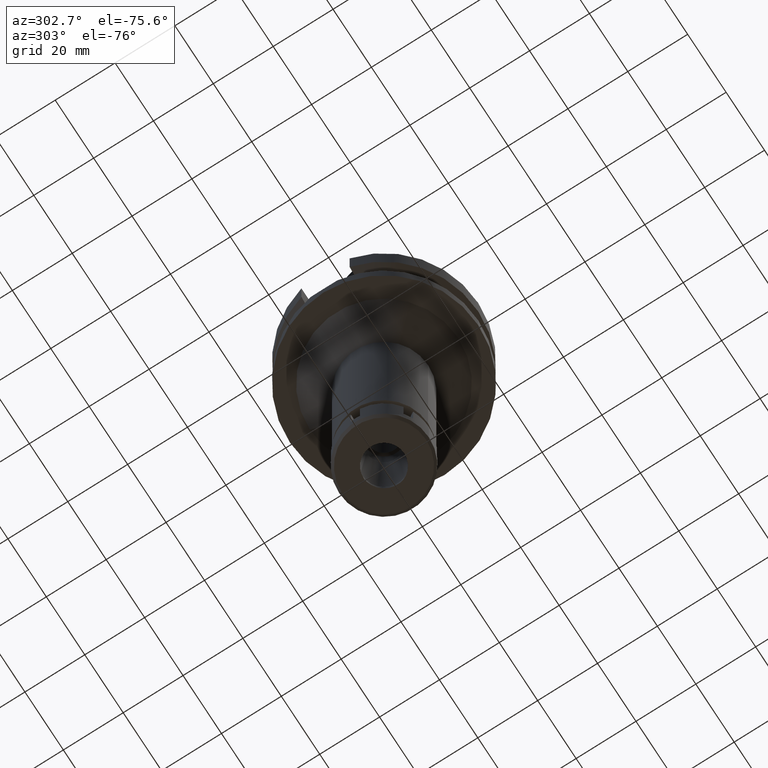
[diagram: clean part render]
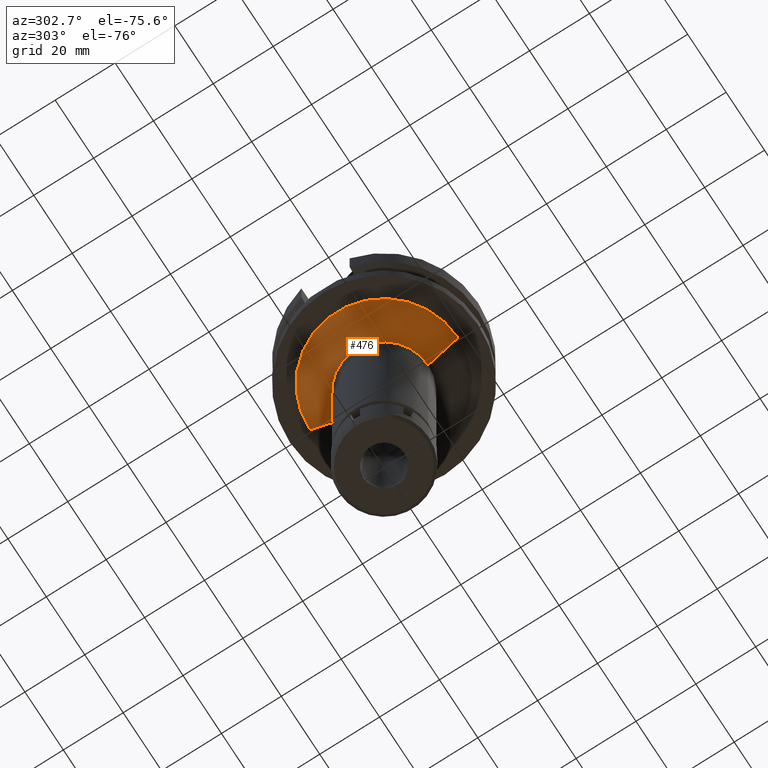
[diagram: same view with one face highlighted and labeled with its STEP entity id]
A machine part, auxiliary view. The second image highlights one B-rep face of the part: STEP entity #476.
In plain terms, the highlighted conical surface has half-angle 45 deg.
Its self-contained STEP definition (entity closure, byte-faithful):
#43 = VERTEX_POINT ( 'NONE', #69 ) ;
#54 = ORIENTED_EDGE ( 'NONE', *, *, #2987, .F. ) ;
#69 = CARTESIAN_POINT ( 'NONE',  ( 0.0000000000000000000, 24.75000000000000000, -27.00000000000000000 ) ) ;
#73 = AXIS2_PLACEMENT_3D ( 'NONE', #1952, #457, #3311 ) ;
#110 = DIRECTION ( 'NONE',  ( 0.0000000000000000000, 0.0000000000000000000, -1.000000000000000000 ) ) ;
#361 = ORIENTED_EDGE ( 'NONE', *, *, #2387, .T. ) ;
#457 = DIRECTION ( 'NONE',  ( 0.0000000000000000000, 0.0000000000000000000, -1.000000000000000000 ) ) ;
#476 = ADVANCED_FACE ( 'NONE', ( #3607 ), #1765, .T. ) ;
#483 = DIRECTION ( 'NONE',  ( 0.0000000000000000000, -0.7071067811865474617, -0.7071067811865474617 ) ) ;
#709 = LINE ( 'NONE', #2243, #717 ) ;
#717 = VECTOR ( 'NONE', #2846, 1000.000000000000114 ) ;
#814 = CARTESIAN_POINT ( 'NONE',  ( 0.0000000000000000000, -14.75000000000000000, -37.00000000000000000 ) ) ;
#828 = LINE ( 'NONE', #2171, #1716 ) ;
#1038 = DIRECTION ( 'NONE',  ( 0.0000000000000000000, 0.0000000000000000000, 1.000000000000000000 ) ) ;
#1053 = AXIS2_PLACEMENT_3D ( 'NONE', #1385, #1038, #2754 ) ;
#1188 = AXIS2_PLACEMENT_3D ( 'NONE', #2630, #110, #2356 ) ;
#1372 = VERTEX_POINT ( 'NONE', #814 ) ;
#1385 = CARTESIAN_POINT ( 'NONE',  ( 0.0000000000000000000, 0.0000000000000000000, -32.00000000000000000 ) ) ;
#1674 = EDGE_LOOP ( 'NONE', ( #2034, #54, #361, #3509 ) ) ;
#1693 = CARTESIAN_POINT ( 'NONE',  ( 0.0000000000000000000, -24.75000000000000000, -27.00000000000000000 ) ) ;
#1716 = VECTOR ( 'NONE', #483, 1000.000000000000114 ) ;
#1765 = CONICAL_SURFACE ( 'NONE', #1053, 19.75000000000000000, 0.7853981633972997312 ) ;
#1868 = EDGE_CURVE ( 'NONE', #1372, #3594, #1895, .T. ) ;
#1889 = EDGE_CURVE ( 'NONE', #43, #3594, #828, .T. ) ;
#1895 = CIRCLE ( 'NONE', #1188, 14.75000000000000000 ) ;
#1952 = CARTESIAN_POINT ( 'NONE',  ( 0.0000000000000000000, 0.0000000000000000000, -27.00000000000000000 ) ) ;
#1960 = CIRCLE ( 'NONE', #73, 24.75000000000000000 ) ;
#2034 = ORIENTED_EDGE ( 'NONE', *, *, #1868, .F. ) ;
#2054 = VERTEX_POINT ( 'NONE', #1693 ) ;
#2171 = CARTESIAN_POINT ( 'NONE',  ( 0.0000000000000000000, 24.75000000000000000, -27.00000000000000000 ) ) ;
#2243 = CARTESIAN_POINT ( 'NONE',  ( 0.0000000000000000000, -24.75000000000000000, -27.00000000000000000 ) ) ;
#2356 = DIRECTION ( 'NONE',  ( 0.0000000000000000000, -1.000000000000000000, 0.0000000000000000000 ) ) ;
#2387 = EDGE_CURVE ( 'NONE', #2054, #43, #1960, .T. ) ;
#2630 = CARTESIAN_POINT ( 'NONE',  ( 0.0000000000000000000, 0.0000000000000000000, -37.00000000000000000 ) ) ;
#2754 = DIRECTION ( 'NONE',  ( 0.0000000000000000000, 1.000000000000000000, 0.0000000000000000000 ) ) ;
#2808 = CARTESIAN_POINT ( 'NONE',  ( 0.0000000000000000000, 14.75000000000000000, -37.00000000000000000 ) ) ;
#2846 = DIRECTION ( 'NONE',  ( 0.0000000000000000000, 0.7071067811865474617, -0.7071067811865474617 ) ) ;
#2987 = EDGE_CURVE ( 'NONE', #2054, #1372, #709, .T. ) ;
#3311 = DIRECTION ( 'NONE',  ( 0.0000000000000000000, -1.000000000000000000, 0.0000000000000000000 ) ) ;
#3509 = ORIENTED_EDGE ( 'NONE', *, *, #1889, .T. ) ;
#3594 = VERTEX_POINT ( 'NONE', #2808 ) ;
#3607 = FACE_OUTER_BOUND ( 'NONE', #1674, .T. ) ;